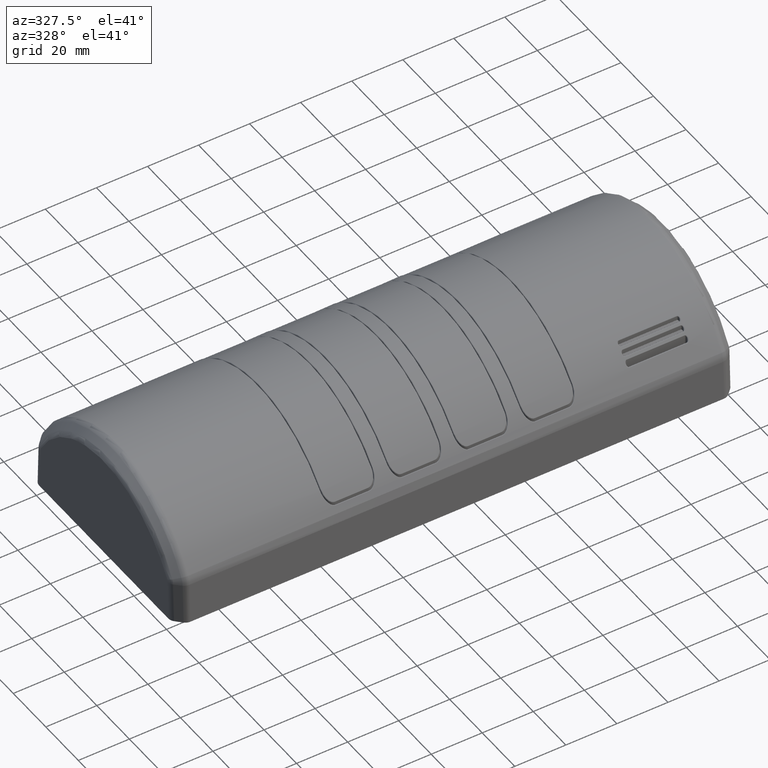
[diagram: clean part render]
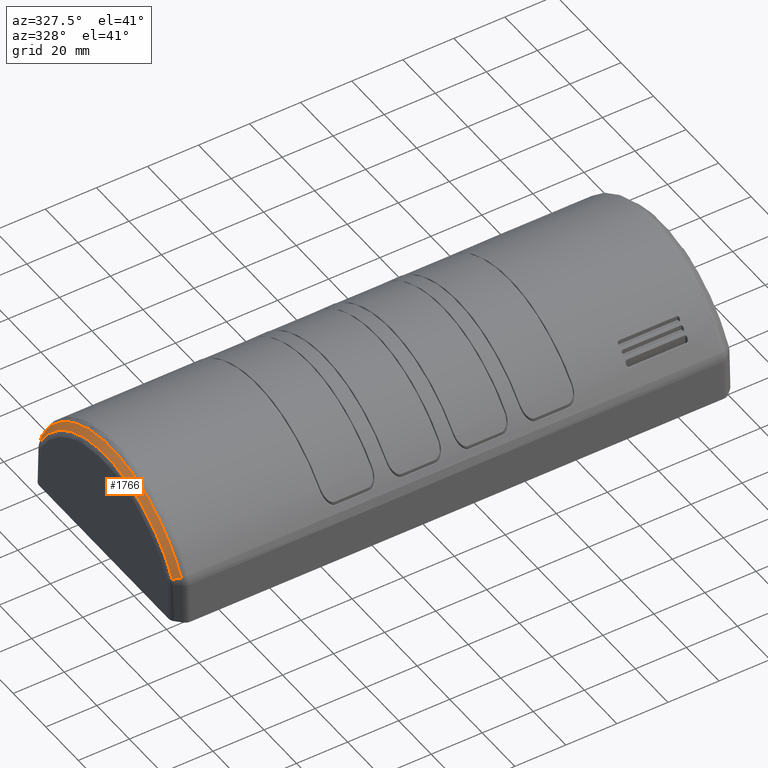
[diagram: same view with one face highlighted and labeled with its STEP entity id]
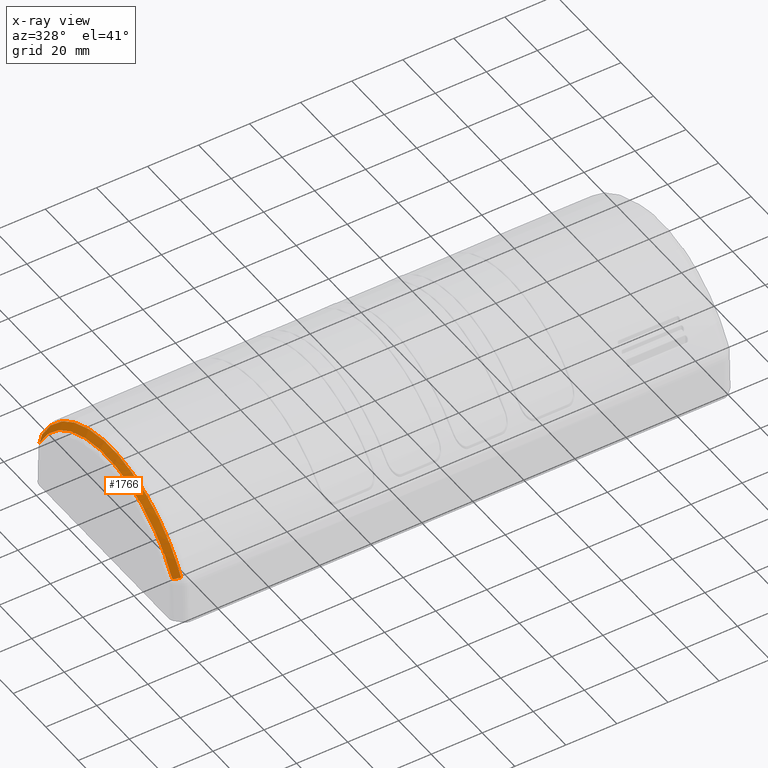
[diagram: x-ray of the same camera — body ghosted, the highlighted face saturated]
A machine part, auxiliary view. The second image highlights one B-rep face of the part: STEP entity #1766.
The next image is the same camera in x-ray: the body ghosted, the highlighted face saturated — about 0% of this face is hidden behind the body in this view.
In plain terms, the highlighted conical surface has half-angle 45 deg.
Its self-contained STEP definition (entity closure, byte-faithful):
#155=CONICAL_SURFACE('',#14580,47.5,45.);
#1170=B_SPLINE_CURVE_WITH_KNOTS('',3,(#21701,#21702,#21703,#21704,#21705,
#21706,#21707,#21708,#21709,#21710,#21711,#21712,#21713,#21714,#21715,#21716,
#21717,#21718),.UNSPECIFIED.,.F.,.F.,(4,2,2,2,2,2,2,2,4),(0.,0.125,0.25,
0.375,0.5,0.625,0.75,0.875,1.),.UNSPECIFIED.);
#1172=B_SPLINE_CURVE_WITH_KNOTS('',3,(#21725,#21726,#21727,#21728),.UNSPECIFIED.,
 .F.,.F.,(4,4),(0.,1.),.UNSPECIFIED.);
#1174=B_SPLINE_CURVE_WITH_KNOTS('',3,(#21735,#21736,#21737,#21738),.UNSPECIFIED.,
 .F.,.F.,(4,4),(0.,1.),.UNSPECIFIED.);
#1205=B_SPLINE_CURVE_WITH_KNOTS('',3,(#22681,#22682,#22683,#22684,#22685,
#22686,#22687,#22688,#22689,#22690,#22691,#22692,#22693,#22694,#22695,#22696,
#22697,#22698),.UNSPECIFIED.,.F.,.F.,(4,2,2,2,2,2,2,2,4),(0.,0.125,0.25,
0.375,0.5,0.625,0.75,0.875,1.),.UNSPECIFIED.);
#1766=ADVANCED_FACE('',(#3000),#155,.T.);
#3000=FACE_OUTER_BOUND('',#3820,.T.);
#3820=EDGE_LOOP('',(#5057,#5058,#5059,#5060));
#5057=ORIENTED_EDGE('',*,*,#10625,.F.);
#5058=ORIENTED_EDGE('',*,*,#10594,.T.);
#5059=ORIENTED_EDGE('',*,*,#10590,.T.);
#5060=ORIENTED_EDGE('',*,*,#10592,.T.);
#9161=VERTEX_POINT('',#21619);
#9163=VERTEX_POINT('',#21656);
#9165=VERTEX_POINT('',#21724);
#9166=VERTEX_POINT('',#21734);
#10590=EDGE_CURVE('',#9163,#9161,#1170,.T.);
#10592=EDGE_CURVE('',#9161,#9165,#1172,.T.);
#10594=EDGE_CURVE('',#9166,#9163,#1174,.T.);
#10625=EDGE_CURVE('',#9166,#9165,#1205,.T.);
#14580=AXIS2_PLACEMENT_3D('',#22699,#15905,#15906);
#15905=DIRECTION('',(1.,0.,0.));
#15906=DIRECTION('',(5.29939391229192E-017,-1.,0.));
#21619=CARTESIAN_POINT('',(-58.2213203435572,-40.808721332421,18.784196467048));
#21656=CARTESIAN_POINT('',(-58.2213203435572,40.811769053909,18.7841964670479));
#21701=CARTESIAN_POINT('',(-58.2213203435572,40.8117690539089,18.7841964670479));
#21702=CARTESIAN_POINT('',(-58.2213203435572,38.8365385693092,22.4425844872366));
#21703=CARTESIAN_POINT('',(-58.2213203435572,36.3666081807442,25.8334645021452));
#21704=CARTESIAN_POINT('',(-58.2213203435572,30.6140662875931,31.8375976836919));
#21705=CARTESIAN_POINT('',(-58.2213203435572,27.3319545640406,34.4503292110369));
#21706=CARTESIAN_POINT('',(-58.2213203435572,20.1908782420292,38.7101863045809));
#21707=CARTESIAN_POINT('',(-58.2213203435572,16.3325340605219,40.3569417742521));
#21708=CARTESIAN_POINT('',(-58.2213203435572,8.31629064169215,42.5662844240637));
#21709=CARTESIAN_POINT('',(-58.2213203435572,4.15908785586807,43.1286796564403));
#21710=CARTESIAN_POINT('',(-58.2213203435572,-4.1560401343801,43.1286796564403));
#21711=CARTESIAN_POINT('',(-58.2213203435572,-8.31324292020419,42.5662844240638));
#21712=CARTESIAN_POINT('',(-58.2213203435572,-16.329486339034,40.3569417742521));
#21713=CARTESIAN_POINT('',(-58.2213203435572,-20.1878305205413,38.710186304581));
#21714=CARTESIAN_POINT('',(-58.2213203435572,-27.3289068425527,34.450329211037));
#21715=CARTESIAN_POINT('',(-58.2213203435572,-30.6110185661052,31.837597683692));
#21716=CARTESIAN_POINT('',(-58.2213203435572,-36.3635604592562,25.8334645021453));
#21717=CARTESIAN_POINT('',(-58.2213203435572,-38.8334908478212,22.4425844872366));
#21718=CARTESIAN_POINT('',(-58.2213203435572,-40.808721332421,18.784196467048));
#21724=CARTESIAN_POINT('',(-55.9786796564379,-42.7821004152125,19.8496598625356));
#21725=CARTESIAN_POINT('',(-58.2213203435572,-40.808721332421,18.784196467048));
#21726=CARTESIAN_POINT('',(-57.4737734478508,-41.4665143600182,19.1393509322105));
#21727=CARTESIAN_POINT('',(-56.7262265521443,-42.1243073876154,19.4945053973731));
#21728=CARTESIAN_POINT('',(-55.9786796564379,-42.7821004152125,19.8496598625356));
#21734=CARTESIAN_POINT('',(-55.9786796564379,42.7851481367004,19.8496598625355));
#21735=CARTESIAN_POINT('',(-55.9786796564379,42.7851481367004,19.8496598625355));
#21736=CARTESIAN_POINT('',(-56.7262265521443,42.1273551091033,19.4945053973729));
#21737=CARTESIAN_POINT('',(-57.4737734478508,41.4695620815061,19.1393509322104));
#21738=CARTESIAN_POINT('',(-58.2213203435572,40.811769053909,18.7841964670479));
#22681=CARTESIAN_POINT('',(-55.9786796564379,42.7851481367004,19.8496598625355));
#22682=CARTESIAN_POINT('',(-55.9786796564379,40.7144053976765,23.6849492064384));
#22683=CARTESIAN_POINT('',(-55.9786796564379,38.1250415447529,27.2397951975867));
#22684=CARTESIAN_POINT('',(-55.9786796564379,32.0943355339619,33.5342581915292));
#22685=CARTESIAN_POINT('',(-55.9786796564379,28.653517324036,36.2733283311665));
#22686=CARTESIAN_POINT('',(-55.9786796564379,21.1671343130848,40.7391707806988));
#22687=CARTESIAN_POINT('',(-55.9786796564379,17.1222199292678,42.4655550980512));
#22688=CARTESIAN_POINT('',(-55.9786796564379,8.71835112346942,44.7817304941799));
#22689=CARTESIAN_POINT('',(-55.9786796564379,4.36012682989312,45.3713203435596));
#22690=CARTESIAN_POINT('',(-55.9786796564379,-4.35707910840516,45.3713203435597));
#22691=CARTESIAN_POINT('',(-55.9786796564379,-8.71530340198146,44.7817304941799));
#22692=CARTESIAN_POINT('',(-55.9786796564379,-17.1191722077798,42.4655550980512));
#22693=CARTESIAN_POINT('',(-55.9786796564379,-21.1640865915969,40.7391707806988));
#22694=CARTESIAN_POINT('',(-55.9786796564379,-28.6504696025481,36.2733283311666));
#22695=CARTESIAN_POINT('',(-55.9786796564379,-32.091287812474,33.5342581915293));
#22696=CARTESIAN_POINT('',(-55.9786796564379,-38.121993823265,27.2397951975868));
#22697=CARTESIAN_POINT('',(-55.9786796564379,-40.7113576761886,23.6849492064385));
#22698=CARTESIAN_POINT('',(-55.9786796564379,-42.7821004152125,19.8496598625356));
#22699=CARTESIAN_POINT('',(-57.0999999999975,0.00152386074393426,-3.25));